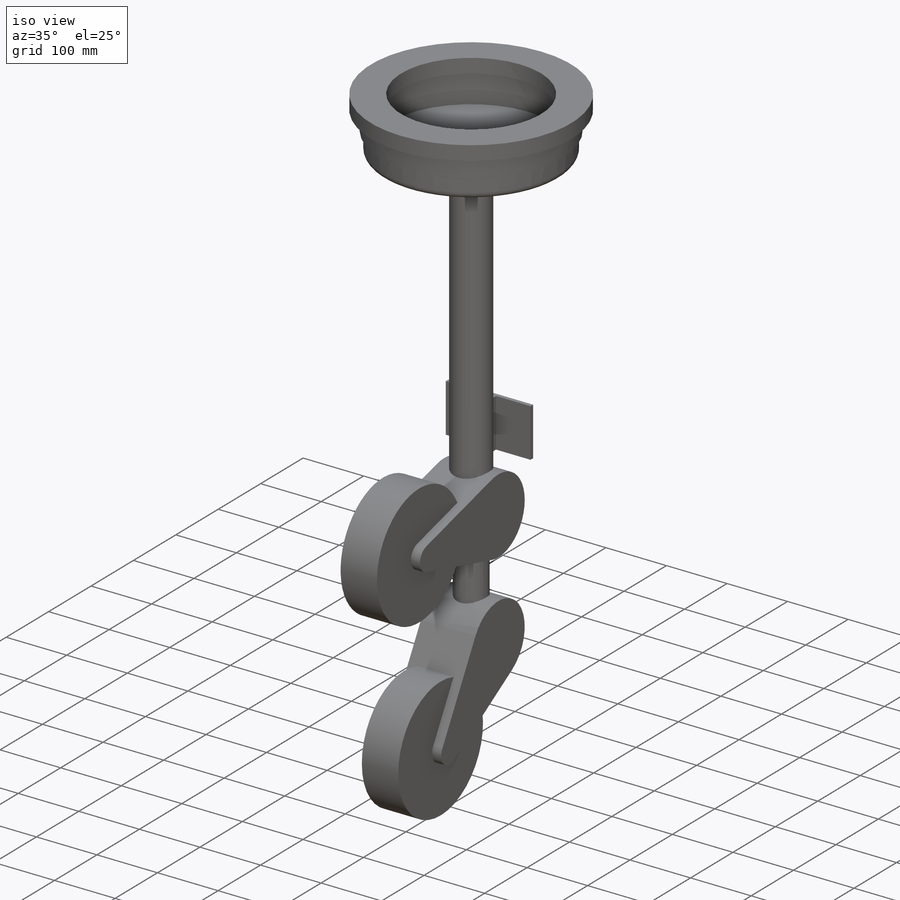
[diagram: iso view]
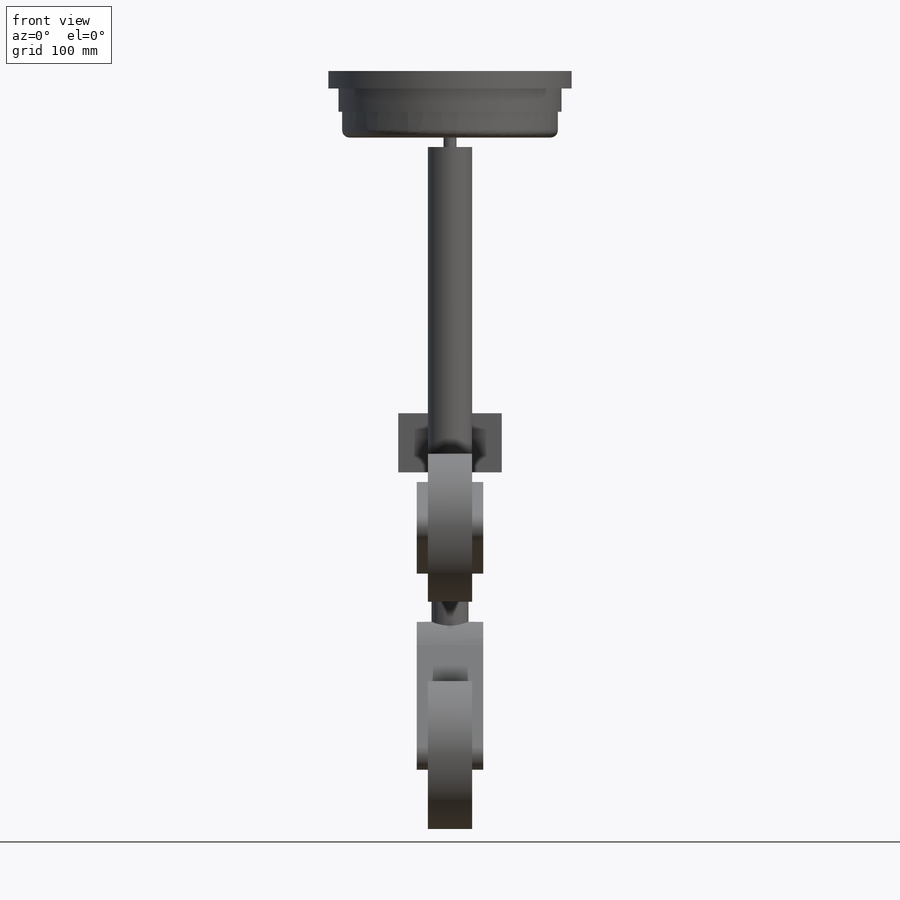
[diagram: front view]
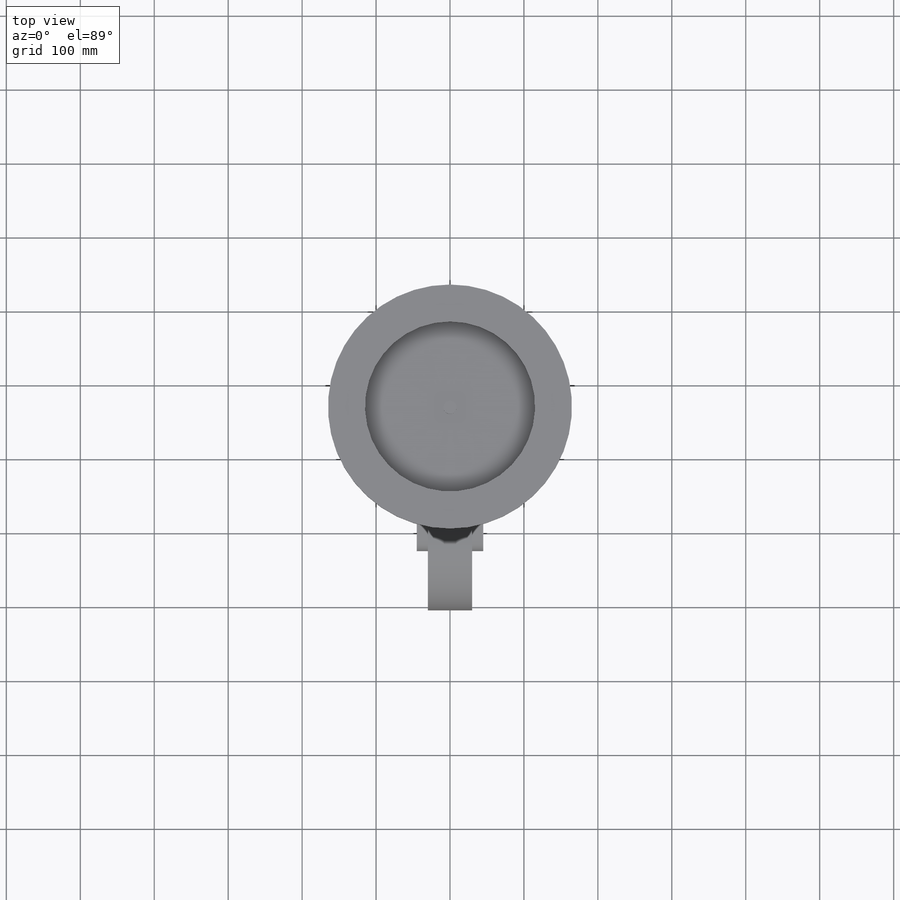
[diagram: top view]
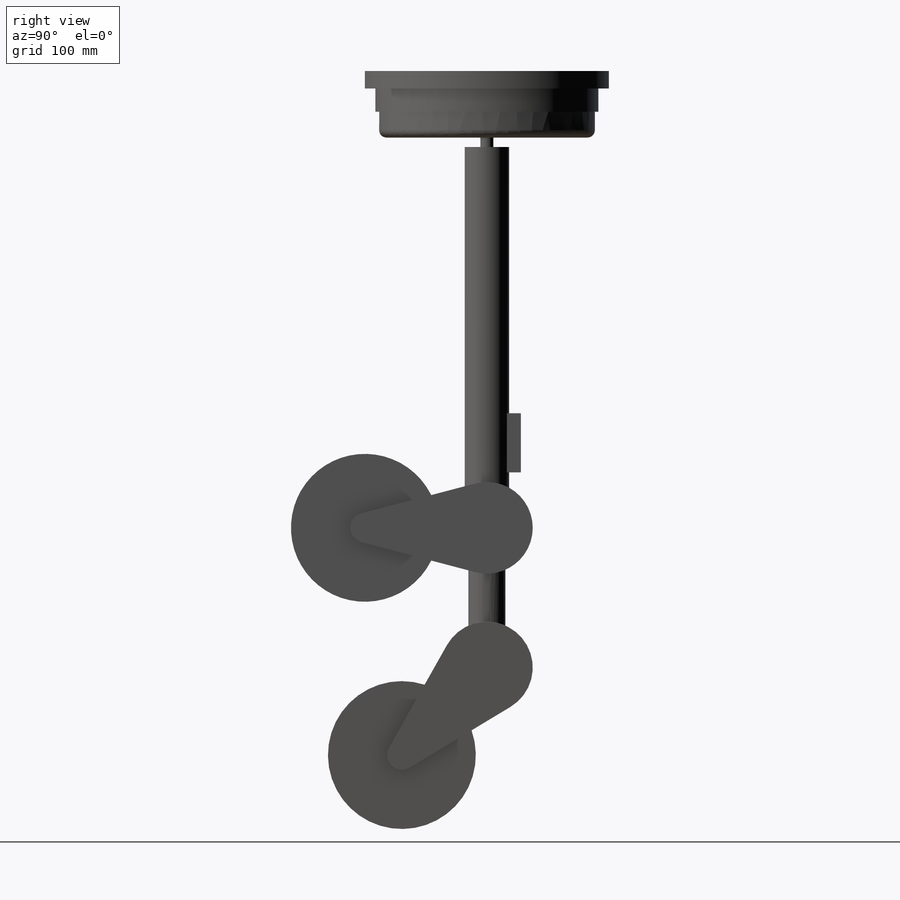
[diagram: right view]
SOLIDWORKS PART (.sldprt)
format: sldprt  version: not decoded by parser v0  size: 324,096 bytes
history: native  units: mm
features: sketch x11, extrude x9, material x1, revolve x1 (+11 scaffold rows collapsed)
feature tree (33):
  scaffold x11  (default folders/planes/origin — collapsed)
  material  "Material <not specified>"
  sketch  "Sketch1"  dims[D1=140.0mm D2=80.0mm]
  extrude  "Boss-Extrude1"  Depth=6mm
  sketch  "Sketch2"  dims[D1=60.0mm D2=10.0mm]
  extrude  "Boss-Extrude2"  Depth=400mm
  sketch  "Sketch3"  dims[D1=50.0mm]
  extrude  "Boss-Extrude3"  Depth=45mm
  sketch  "Sketch4"  dims[c1.D1=40.0mm c1.D3=62.0mm c2.D1=20.0mm c2.D2=165.0mm c2.D3=165.0mm]
  extrude  "Boss-Extrude4"  Depth=45mm
  sketch  "Sketch6"  dims[D1=200.0mm]
  extrude  "Boss-Extrude5"  Depth=30mm
  sketch  "Sketch7"
  extrude  "Boss-Extrude6"  [1 undecoded]
  sketch  "Sketch8"  dims[D1=10.0mm D2=140.0mm D3=35.0mm D4=35.0mm D5=55.0mm D6=12.0mm D7=12.0mm D8=50.0mm]
  revolve  "Revolve1"  Angle=360deg
  sketch  "Sketch9"
  extrude  "Boss-Extrude7"  Depth=189mm
  sketch  "Sketch10"  dims[D1=165.0mm D2=115.0mm]
  extrude  "Boss-Extrude8"  Depth=45mm
  sketch  "Sketch11"
  extrude  "Boss-Extrude9"  Depth=30mm
  sketch  "3DSketch1"
decode coverage: 16 of 21 modeling features carry decoded parameters
note: 1 parameter value undecoded
note: suppression state not decoded; provenance and decode notes live in map.json
